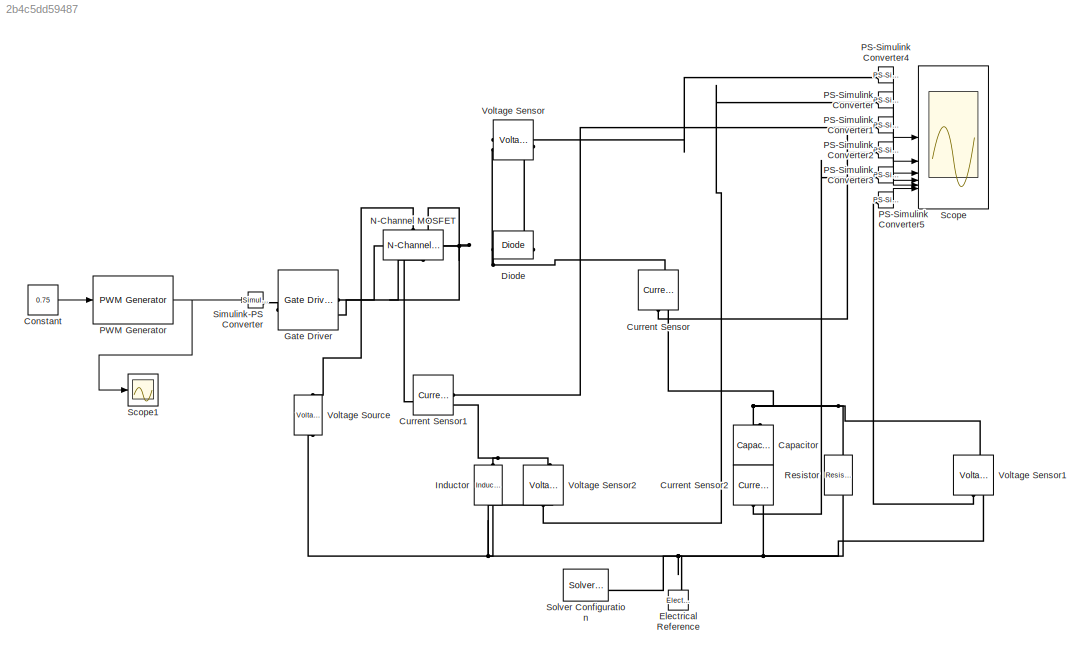
MODEL slx_2b4c5dd59487
KIND model
CONFIG AbsTol = auto
CONFIG EnableMultiTasking = off
CONFIG FixedStep = auto
CONFIG MaxStep = 1e-7
CONFIG MinStep = auto
CONFIG RelTol = 1e-3
CONFIG SampleTimeConstraint = Unconstrained
CONFIG SolverName = VariableStepAuto
CONFIG StartTime = 0.0
CONFIG StopTime = 0.004
BLOCK [Reference] Capacitor  REF=ee_lib/Passive/Capacitor
  NameLocation = left
  SourceBlock = ee_lib/Passive/Capacitor
  SourceType = Capacitor
BLOCK [Constant] Constant
  Value = 0.75
BLOCK [Reference] Current Sensor  REF=fl_lib/Electrical/Electrical Sensors/Current Sensor
  NameLocation = left
  SourceBlock = fl_lib/Electrical/Electrical Sensors/Current Sensor
  SourceType = Current Sensor
BLOCK [Reference] Current Sensor1  REF=fl_lib/Electrical/Electrical Sensors/Current Sensor
  SourceBlock = fl_lib/Electrical/Electrical Sensors/Current Sensor
  SourceType = Current Sensor
BLOCK [Reference] Current Sensor2  REF=fl_lib/Electrical/Electrical Sensors/Current Sensor
  NameLocation = right
  SourceBlock = fl_lib/Electrical/Electrical Sensors/Current Sensor
  SourceType = Current Sensor
BLOCK [Reference] Diode  REF=ee_lib/Semiconductors &
Converters/Diode
  NameLocation = top
  SourceBlock = ee_lib/Semiconductors &\nConverters/Diode
  SourceType = Diode
BLOCK [Reference] Electrical Reference  REF=fl_lib/Electrical/Electrical Elements/Electrical Reference
  NameLocation = right
  SourceBlock = fl_lib/Electrical/Electrical Elements/Electrical Reference
  SourceType = Electrical Reference
BLOCK [Reference] Gate Driver  REF=ee_lib/Semiconductors &
Converters/Gate Driver
  SourceBlock = ee_lib/Semiconductors &\nConverters/Gate Driver
  SourceType = Gate Driver
BLOCK [Reference] Inductor  REF=ee_lib/Passive/Inductor
  NameLocation = left
  SourceBlock = ee_lib/Passive/Inductor
  SourceType = Inductor
BLOCK [Reference] N-Channel MOSFET  REF=ee_lib/Semiconductors &
Converters/N-Channel MOSFET
  NameLocation = right
  SourceBlock = ee_lib/Semiconductors &\nConverters/N-Channel MOSFET
  SourceType = N-Channel MOSFET
BLOCK [Reference] PS-Simulink Converter  REF=nesl_utility/PS-Simulink
Converter
  SourceBlock = nesl_utility/PS-Simulink\nConverter
  SourceType = PS-Simulink\nConverter
BLOCK [Reference] PS-Simulink Converter1  REF=nesl_utility/PS-Simulink
Converter
  SourceBlock = nesl_utility/PS-Simulink\nConverter
  SourceType = PS-Simulink\nConverter
BLOCK [Reference] PS-Simulink Converter2  REF=nesl_utility/PS-Simulink
Converter
  SourceBlock = nesl_utility/PS-Simulink\nConverter
  SourceType = PS-Simulink\nConverter
BLOCK [Reference] PS-Simulink Converter3  REF=nesl_utility/PS-Simulink
Converter
  SourceBlock = nesl_utility/PS-Simulink\nConverter
  SourceType = PS-Simulink\nConverter
BLOCK [Reference] PS-Simulink Converter4  REF=nesl_utility/PS-Simulink
Converter
  SourceBlock = nesl_utility/PS-Simulink\nConverter
  SourceType = PS-Simulink\nConverter
BLOCK [Reference] PS-Simulink Converter5  REF=nesl_utility/PS-Simulink
Converter
  SourceBlock = nesl_utility/PS-Simulink\nConverter
  SourceType = PS-Simulink\nConverter
BLOCK [Reference] PWM Generator  REF=eePwmGenerator/PWM Generator
  SourceBlock = eePwmGenerator/PWM Generator
  SourceType = PWM Generator
BLOCK [Reference] Resistor  REF=ee_lib/Passive/Resistor
  NameLocation = left
  SourceBlock = ee_lib/Passive/Resistor
  SourceType = Resistor
BLOCK [Scope] Scope
  Floating = off
  NumInputPorts = 6
  ScopeSpecificationString = Simulink.scopes.TimeScopeBlockCfg('CurrentConfiguration', extmgr.ConfigurationSet(extmgr.Configuration('Core','General UI',true),extmgr.Configuration('Core','Source UI',true),extmgr.Configuration('Sources','WiredSimulink',true),extmgr.Configuration('Visuals','Time Domain',true,'SerializedDisplays',{struct('MinYLimReal','-9.2945','MaxYLimReal','75.43931','YLabelReal','','MinYLimMag','0.00000','MaxY...<+4953ch>
BLOCK [Scope] Scope1
  Floating = off
  NumInputPorts = 1
  ScopeSpecificationString = Simulink.scopes.TimeScopeBlockCfg('CurrentConfiguration', extmgr.ConfigurationSet(extmgr.Configuration('Core','General UI',true),extmgr.Configuration('Core','Source UI',true),extmgr.Configuration('Sources','WiredSimulink',true,'DataLoggingVariableName','ScopeData1'),extmgr.Configuration('Visuals','Time Domain',true,'SerializedDisplays',{struct('MinYLimReal','-0.125','MaxYLimReal','1.125','YLabelRe...<+1457ch>
BLOCK [Reference] Simulink-PS Converter  REF=nesl_utility/Simulink-PS
Converter
  SourceBlock = nesl_utility/Simulink-PS\nConverter
  SourceType = Simulink-PS\nConverter
BLOCK [Reference] Solver Configuration  REF=nesl_utility/Solver
Configuration
  SourceBlock = nesl_utility/Solver\nConfiguration
  SourceType = Solver\nConfiguration
BLOCK [Reference] Voltage Sensor  REF=fl_lib/Electrical/Electrical Sensors/Voltage Sensor
  NameLocation = top
  SourceBlock = fl_lib/Electrical/Electrical Sensors/Voltage Sensor
  SourceType = Voltage Sensor
BLOCK [Reference] Voltage Sensor1  REF=fl_lib/Electrical/Electrical Sensors/Voltage Sensor
  NameLocation = right
  SourceBlock = fl_lib/Electrical/Electrical Sensors/Voltage Sensor
  SourceType = Voltage Sensor
BLOCK [Reference] Voltage Sensor2  REF=fl_lib/Electrical/Electrical Sensors/Voltage Sensor
  NameLocation = right
  SourceBlock = fl_lib/Electrical/Electrical Sensors/Voltage Sensor
  SourceType = Voltage Sensor
BLOCK [Reference] Voltage Source  REF=ee_lib/Sources/Voltage Source
  NameLocation = right
  SourceBlock = ee_lib/Sources/Voltage Source
  SourceType = Voltage Source
LINE Constant:1 -> PWM Generator:1
LINE PS-Simulink Converter1:1 -> Scope:3
LINE PS-Simulink Converter2:1 -> Scope:4
LINE PS-Simulink Converter3:1 -> Scope:5
LINE PS-Simulink Converter4:1 -> Scope:1
LINE PS-Simulink Converter5:1 -> Scope:6
LINE PS-Simulink Converter:1 -> Scope:2
NET PWM Generator:1 -> Scope1:1, Simulink-PS Converter:1
PNET net1: Capacitor:LConn1 -- Current Sensor:RConn2 -- Resistor:LConn1 -- Voltage Sensor1:LConn1
PLINE Capacitor:RConn1 -- Current Sensor2:LConn1
PNET net2: Current Sensor1:LConn1 -- Diode:RConn1 -- Gate Driver:RConn2 -- N-Channel MOSFET:RConn2 -- Voltage Sensor:LConn1
PLINE Current Sensor1:RConn1 -- PS-Simulink Converter1:LConn1
PNET net3: Current Sensor1:RConn2 -- Inductor:LConn1 -- Voltage Sensor2:LConn1
PLINE Current Sensor2:RConn1 -- PS-Simulink Converter3:LConn1
PNET net4: Current Sensor2:RConn2 -- Electrical Reference:LConn1 -- Inductor:RConn1 -- Resistor:RConn1 -- Solver Configuration:RConn1 -- Voltage Sensor1:RConn2 -- Voltage Sensor2:RConn2 -- Voltage Source:RConn1
PNET net5: Current Sensor:LConn1 -- Diode:LConn1 -- Voltage Sensor:RConn2
PLINE Current Sensor:RConn1 -- PS-Simulink Converter2:LConn1
PLINE Gate Driver:LConn1 -- Simulink-PS Converter:RConn1
PLINE Gate Driver:RConn1 -- N-Channel MOSFET:LConn1
PLINE N-Channel MOSFET:RConn1 -- Voltage Source:LConn1
PLINE PS-Simulink Converter4:LConn1 -- Voltage Sensor:RConn1
PLINE PS-Simulink Converter5:LConn1 -- Voltage Sensor1:RConn1
PLINE PS-Simulink Converter:LConn1 -- Voltage Sensor2:RConn1
note: NET lines group one-source signal fan-out (src -> all destinations, sorted); 1:1 wires keep LINE; PNET lines group multi-terminal physical nets as a canonical sorted terminal list (undirected conserving connections); 2-terminal nets keep the pairwise PLINE form
